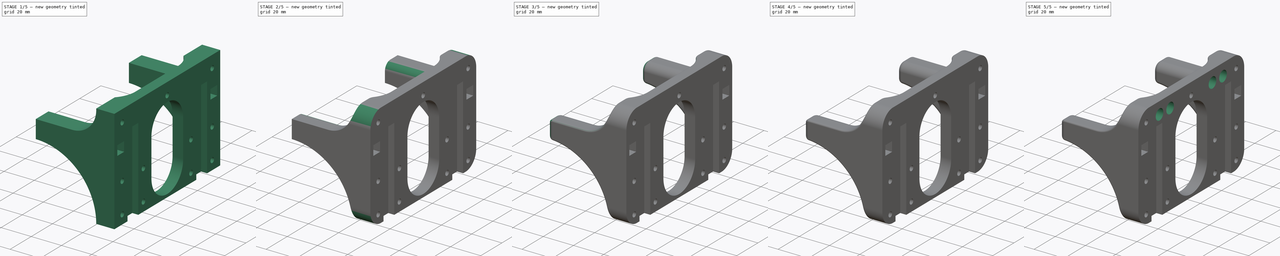
[diagram: build sequence overview — one tinted view per stage of 5, left to right]
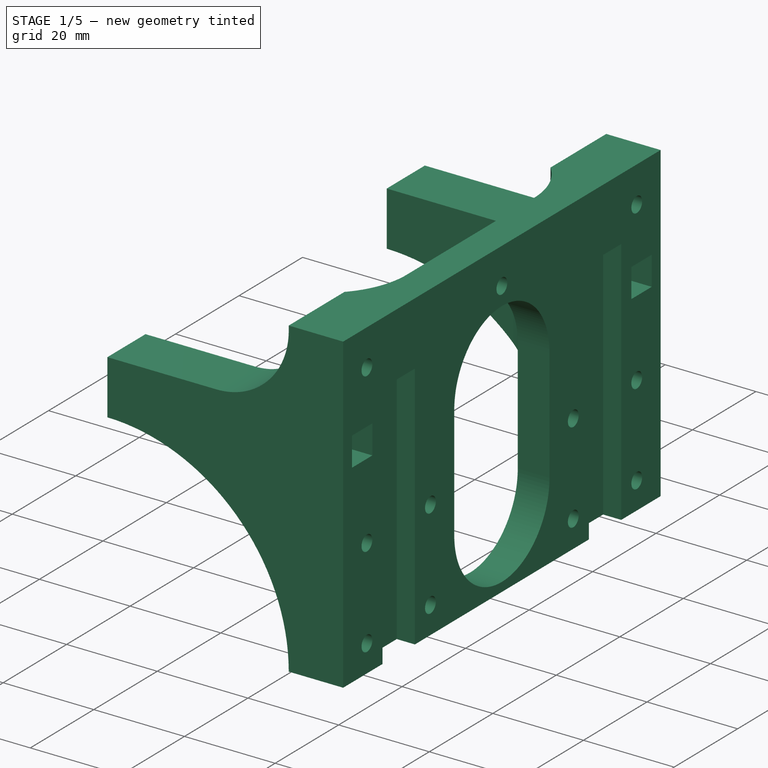
[diagram: stage 1 of 5 — iso view after this stage's code; geometry added in this stage tinted green]
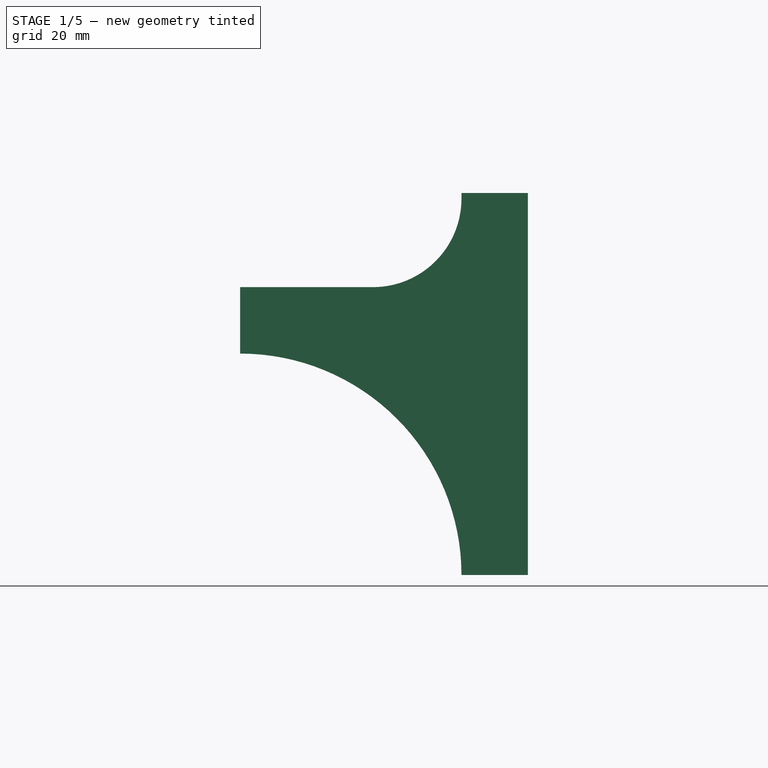
[diagram: stage 1 of 5 — front view after this stage's code; geometry added in this stage tinted green]
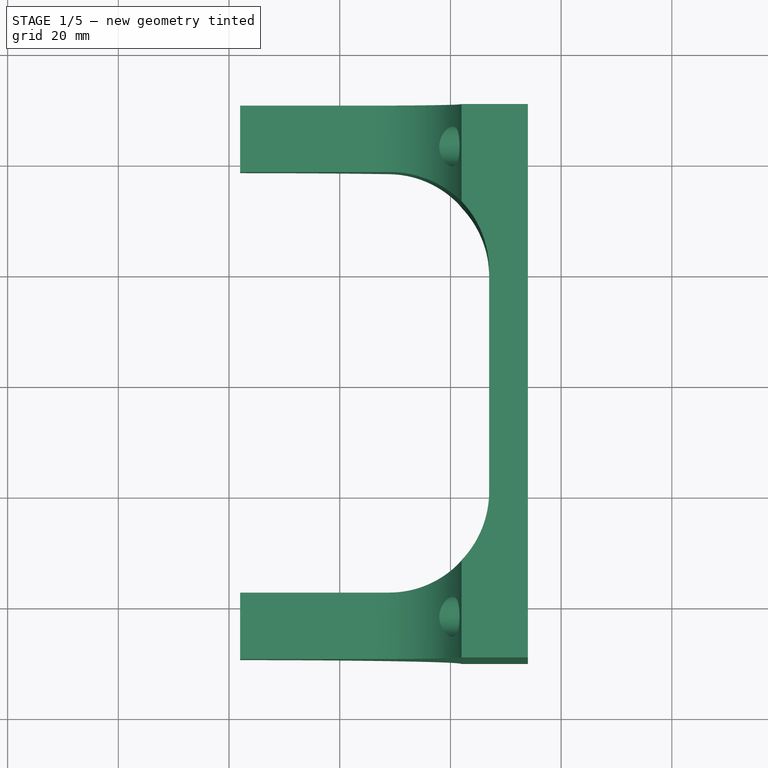
[diagram: stage 1 of 5 — top view after this stage's code; geometry added in this stage tinted green]
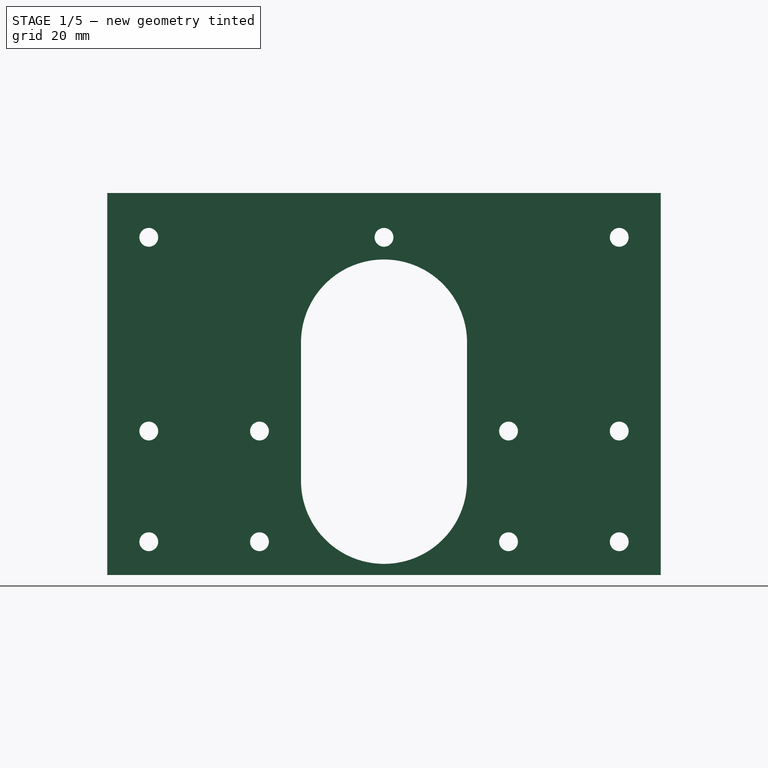
[diagram: stage 1 of 5 — right view after this stage's code; geometry added in this stage tinted green]
FCSTD DOCUMENT  (FreeCAD 0.16R6706 (Git))
Label: BodyBracketB
License: All rights reserved
LicenseURL: http://en.wikipedia.org/wiki/All_rights_reserved
objects: PartDesign::Fillet×12, PartDesign::Chamfer×11, Sketcher::SketchObject×7, PartDesign::Pocket×6, PartDesign::Pad×1
note: 44 computed .brp shape members not serialized (recipe doc carries the construction recipe); baked Part::Feature solids carry a one-line shape summary decoded from their .brp

FEATURE [Sketcher::SketchObject] Sketch001
  Placement = pos=(-86,0,0) rot=(0.57735,-0.57735,-0.57735;2.0944rad)
  sketch-geometry (46):
    g0: LineSegment [constr] StartX=-47.2 StartY=9.2 StartZ=0 EndX=-40.8 EndY=9.2 EndZ=0
    g1: LineSegment [constr] StartX=-40.8 StartY=9.2 StartZ=0 EndX=-40.8 EndY=2.8 EndZ=0
    g2: LineSegment [constr] StartX=-40.8 StartY=2.8 StartZ=0 EndX=-47.2 EndY=2.8 EndZ=0
    g3: LineSegment [constr] StartX=-47.2 StartY=2.8 StartZ=0 EndX=-47.2 EndY=9.2 EndZ=0
    g4: LineSegment [constr] StartX=40.8 StartY=9.2 StartZ=0 EndX=47.2 EndY=9.2 EndZ=0
    g5: LineSegment [constr] StartX=47.2 StartY=9.2 StartZ=0 EndX=47.2 EndY=2.8 EndZ=0
    g6: LineSegment [constr] StartX=47.2 StartY=2.8 StartZ=0 EndX=40.8 EndY=2.8 EndZ=0
    g7: LineSegment [constr] StartX=40.8 StartY=2.8 StartZ=0 EndX=40.8 EndY=9.2 EndZ=0
    g8: GeomPoint [constr] X=-44 Y=6 Z=0
    g9: GeomPoint [constr] X=44 Y=6 Z=0
    g10: Circle [constr] CenterX=-30 CenterY=21 CenterZ=0 NormalX=0 NormalY=0 NormalZ=1 Radius=1.7
    g11: Circle [constr] CenterX=30 CenterY=21 CenterZ=0 NormalX=0 NormalY=0 NormalZ=1 Radius=1.7
    g12: Circle [constr] CenterX=20 CenterY=21 CenterZ=0 NormalX=0 NormalY=0 NormalZ=1 Radius=1.7
    g13: Circle [constr] CenterX=-20 CenterY=21 CenterZ=0 NormalX=0 NormalY=0 NormalZ=1 Radius=1.7
    g14: LineSegment [constr] StartX=-30 StartY=21 StartZ=0 EndX=30 EndY=21 EndZ=0
    g15: LineSegment StartX=-50 StartY=29 StartZ=0 EndX=50 EndY=29 EndZ=0
    g16: LineSegment StartX=50 StartY=29 StartZ=0 EndX=50 EndY=-40 EndZ=0
    g17: LineSegment StartX=50 StartY=-40 StartZ=0 EndX=-50 EndY=-40 EndZ=0
    g18: LineSegment StartX=-50 StartY=-40 StartZ=0 EndX=-50 EndY=29 EndZ=0
    g19: Circle [constr] CenterX=10 CenterY=12 CenterZ=0 NormalX=0 NormalY=0 NormalZ=1 Radius=8
    g20: Circle CenterX=42.5 CenterY=-14 CenterZ=0 NormalX=0 NormalY=0 NormalZ=1 Radius=1.7
    g21: Circle CenterX=42.5 CenterY=-34 CenterZ=0 NormalX=0 NormalY=0 NormalZ=1 Radius=1.7
    g22: Circle CenterX=22.5 CenterY=-14 CenterZ=0 NormalX=0 NormalY=0 NormalZ=1 Radius=1.7
    g23: Circle CenterX=22.5 CenterY=-34 CenterZ=0 NormalX=0 NormalY=0 NormalZ=1 Radius=1.7
    g24: Circle CenterX=-22.5 CenterY=-14 CenterZ=0 NormalX=0 NormalY=0 NormalZ=1 Radius=1.7
    g25: Circle CenterX=-42.5 CenterY=-14 CenterZ=0 NormalX=0 NormalY=0 NormalZ=1 Radius=1.7
    g26: Circle CenterX=-42.5 CenterY=-34 CenterZ=0 NormalX=0 NormalY=0 NormalZ=1 Radius=1.7
    g27: Circle CenterX=-22.5 CenterY=-34 CenterZ=0 NormalX=0 NormalY=0 NormalZ=1 Radius=1.7
    g28: LineSegment [constr] StartX=42.5 StartY=-14 StartZ=0 EndX=-42.5 EndY=-14 EndZ=0
    g29: LineSegment [constr] StartX=-42.5 StartY=-14 StartZ=0 EndX=-42.5 EndY=-34 EndZ=0
    g30: LineSegment [constr] StartX=-42.5 StartY=-34 StartZ=0 EndX=42.5 EndY=-34 EndZ=0
    g31: LineSegment [constr] StartX=42.5 StartY=-34 StartZ=0 EndX=42.5 EndY=-14 EndZ=0
    g32: LineSegment [constr] StartX=-22.5 StartY=-34 StartZ=0 EndX=-22.5 EndY=-14 EndZ=0
    g33: LineSegment [constr] StartX=22.5 StartY=-14 StartZ=0 EndX=22.5 EndY=-34 EndZ=0
    g34: GeomPoint [constr] X=-32.5 Y=-14 Z=0
    g35: GeomPoint [constr] X=32.5 Y=-14 Z=0
    g36: Circle CenterX=-42.5 CenterY=21 CenterZ=0 NormalX=0 NormalY=0 NormalZ=1 Radius=1.7
    g37: Circle CenterX=42.5 CenterY=21 CenterZ=0 NormalX=0 NormalY=0 NormalZ=1 Radius=1.7
    g38: LineSegment [constr] StartX=42.5 StartY=-14 StartZ=0 EndX=42.5 EndY=21 EndZ=0
    g39: LineSegment [constr] StartX=30 StartY=21 StartZ=0 EndX=42.5 EndY=21 EndZ=0
    g40: Circle CenterX=0 CenterY=21 CenterZ=0 NormalX=0 NormalY=0 NormalZ=1 Radius=1.7
    g41: Circle [constr] CenterX=-10 CenterY=12 CenterZ=0 NormalX=0 NormalY=0 NormalZ=1 Radius=8
    g42: ArcOfCircle CenterX=0 CenterY=-23 CenterZ=0 NormalX=0 NormalY=0 NormalZ=1 Radius=15 StartAngle=3.14159 EndAngle=6.28319
    g43: ArcOfCircle CenterX=0 CenterY=2 CenterZ=0 NormalX=0 NormalY=0 NormalZ=1 Radius=15 StartAngle=0 EndAngle=3.14159
    g44: LineSegment StartX=15 StartY=-23 StartZ=0 EndX=15 EndY=2 EndZ=0
    g45: LineSegment StartX=-15 StartY=-23 StartZ=0 EndX=-15 EndY=2 EndZ=0
  constraints (114):
    c: Coincident(g0,g1)
    c: Coincident(g1,g2)
    c: Coincident(g2,g3)
    c: Coincident(g3,g0)
    c: Horizontal(g0)
    c: Horizontal(g2)
    c: Vertical(g1)
    c: Vertical(g3)
    c: Coincident(g4,g5)
    c: Coincident(g5,g6)
    c: Coincident(g6,g7)
    c: Coincident(g7,g4)
    c: Horizontal(g4)
    c: Horizontal(g6)
    c: Vertical(g5)
    c: Vertical(g7)
    c: Symmetric(g4,g0,g-2)
    c: Symmetric(g6,g1,g-2)
    c: Equal(g7,g4)
    c: DistanceY(g5,g5) = 6.4
    c: Symmetric(g2,g0,g8)
    c: Symmetric(g4,g6,g9)
    c: DistanceX(g8,g9) = 88
    c: Radius(g10) = 1.7
    c: Equal(g10,g13)
    c: Equal(g10,g12)
    c: Equal(g10,g11)
    c: Coincident(g14,g11)
    c: PointOnObject(g12,g14)
    c: PointOnObject(g13,g14)
    c: Coincident(g10,g14)
    c: Symmetric(g13,g12,g-2)
    c: DistanceX(g13,g12) = 40
    c: DistanceX(g10,g11) = 60
    c: Symmetric(g10,g11,g-2)
    c: DistanceY(g8,g10) = 15
    c: Coincident(g15,g16)
    c: Coincident(g16,g17)
    c: Coincident(g17,g18)
    c: Coincident(g18,g15)
    c: Horizontal(g15)
    c: Horizontal(g17)
    c: Vertical(g16)
    c: Vertical(g18)
    c: DistanceY(g-1,g8) = 6
    c: Symmetric(g17,g16,g-2)
    c: DistanceX(g17,g16) = 100
    c: DistanceY(g16,g-1) = 40
    c: DistanceY(g-1,g15) = 29
    c: DistanceY(g-1,g19) = 12
    c: Radius(g19) = 8
    c: Coincident(g28,g29)
    c: Coincident(g29,g30)
    c: Coincident(g30,g31)
    c: Coincident(g31,g28)
    c: Horizontal(g28)
    c: Vertical(g29)
    c: Vertical(g31)
    c: Coincident(g28,g20)
    c: Coincident(g29,g26)
    c: Coincident(g28,g25)
    c: Coincident(g21,g30)
    c: Coincident(g32,g27)
    c: Coincident(g32,g24)
    c: Vertical(g32)
    c: Coincident(g33,g22)
    c: Coincident(g33,g23)
    c: Vertical(g33)
    c: PointOnObject(g23,g30)
    c: PointOnObject(g22,g28)
    c: PointOnObject(g24,g28)
    c: PointOnObject(g27,g30)
    c: Radius(g26) = 1.7
    c: Equal(g26,g25)
    c: Equal(g26,g24)
    c: Equal(g26,g27)
    c: Equal(g26,g22)
    c: Equal(g26,g23)
    c: Equal(g26,g20)
    c: Equal(g26,g21)
    c: Symmetric(g27,g23,g-2)
    c: Symmetric(g26,g21,g-2)
    c: DistanceX(g23,g21) = 20
    c: DistanceY(g21,g20) = 20
    c: Symmetric(g24,g25,g34)
    c: Symmetric(g20,g22,g35)
    c: DistanceX(g34,g35) = 65
    c: DistanceY(g24,g-1) = 14
    c: Vertical(g38)
    c: Coincident(g20,g38)
    c: Coincident(g37,g38)
    c: Symmetric(g36,g37,g-2)
    c: Radius(g37) = 1.7
    c: Equal(g37,g36)
    c: Coincident(g39,g11)
    c: Coincident(g39,g37)
    c: Horizontal(g39)
    c: DistanceY(g20,g37) = 35
    c: Equal(g40,g12)
    c: Equal(g41,g19)
    c: Symmetric(g41,g19,g-2)
    c: DistanceX(g41,g19) = 20
    c: PointOnObject(g40,g-2)
    c: PointOnObject(g40,g14)
    c: Tangent(g42,g45) = 1.5708
    c: Tangent(g42,g44) = -1.5708
    c: Tangent(g44,g43) = -1.5708
    c: Tangent(g45,g43) = 1.5708
    c: Vertical(g44)
    c: Equal(g42,g43)
    c: PointOnObject(g42,g-2)
    c: DistanceX(g42,g42) = 30
    c: DistanceY(g42,g43) = 25
    c: DistanceY(g-1,g43) = 2
FEATURE [PartDesign::Pad] Pad
  Length = 52
  Length2 = 100
  Placement = pos=(-86,0,0) rot=(0.57735,-0.57735,-0.57735;2.0944rad)
  Sketch = -> Sketch001
  Type = 0
FEATURE [Sketcher::SketchObject] Sketch004
  Placement = pos=(-86,0,0) rot=(-0.57735,0.57735,-0.57735;2.0944rad)
  Support = -> Pad [Face20]
  sketch-geometry (12):
    g0: LineSegment StartX=-37.6 StartY=85 StartZ=0 EndX=-27.4 EndY=85 EndZ=0
    g1: LineSegment StartX=-27.4 StartY=85 StartZ=0 EndX=-27.4 EndY=-15 EndZ=0
    g2: LineSegment StartX=-27.4 StartY=-15 StartZ=0 EndX=-37.6 EndY=-15 EndZ=0
    g3: LineSegment StartX=-37.6 StartY=-15 StartZ=0 EndX=-37.6 EndY=85 EndZ=0
    g4: LineSegment StartX=27.4 StartY=85 StartZ=0 EndX=37.6 EndY=85 EndZ=0
    g5: LineSegment StartX=37.6 StartY=85 StartZ=0 EndX=37.6 EndY=-15 EndZ=0
    g6: LineSegment StartX=37.6 StartY=-15 StartZ=0 EndX=27.4 EndY=-15 EndZ=0
    g7: LineSegment StartX=27.4 StartY=-15 StartZ=0 EndX=27.4 EndY=85 EndZ=0
    g8: LineSegment [constr] StartX=-27.4 StartY=-15 StartZ=0 EndX=27.4 EndY=-15 EndZ=0
    g9: LineSegment [constr] StartX=-27.4 StartY=85 StartZ=0 EndX=27.4 EndY=85 EndZ=0
    g10: GeomPoint [constr] X=-32.5 Y=85 Z=0
    g11: GeomPoint [constr] X=32.5 Y=85 Z=0
  constraints (30):
    c: Coincident(g0,g1)
    c: Coincident(g1,g2)
    c: Coincident(g2,g3)
    c: Coincident(g3,g0)
    c: Horizontal(g0)
    c: Horizontal(g2)
    c: Vertical(g1)
    c: Vertical(g3)
    c: Coincident(g4,g5)
    c: Coincident(g5,g6)
    c: Coincident(g6,g7)
    c: Coincident(g7,g4)
    c: Horizontal(g4)
    c: Horizontal(g6)
    c: Vertical(g5)
    c: Vertical(g7)
    c: DistanceX(g0,g0) = 10.2
    c: DistanceX(g4,g4) = 10.2
    c: Coincident(g8,g1)
    c: Horizontal(g8)
    c: Coincident(g6,g8)
    c: Coincident(g9,g0)
    c: Horizontal(g9)
    c: Coincident(g9,g4)
    c: DistanceY(g1,g-1) = 15
    c: DistanceY(g2,g0) = 100
    c: Symmetric(g4,g4,g11)
    c: Symmetric(g0,g0,g10)
    c: DistanceX(g10,g11) = 65
    c: Symmetric(g4,g0,g-2)
FEATURE [PartDesign::Pocket] Pocket
  Length = 4
  Placement = pos=(-86,0,0) rot=(0.57735,-0.57735,-0.57735;2.0944rad)
  Sketch = -> Sketch004
  Type = 0
FEATURE [Sketcher::SketchObject] Sketch
  Placement = pos=(-86,0,0) rot=(-0.57735,0.57735,-0.57735;2.0944rad)
  Support = -> Pocket [Face4]
  sketch-geometry (10):
    g0: LineSegment StartX=-47.2 StartY=-2.8 StartZ=0 EndX=-40.8 EndY=-2.8 EndZ=0
    g1: LineSegment StartX=-40.8 StartY=-2.8 StartZ=0 EndX=-40.8 EndY=-9.2 EndZ=0
    g2: LineSegment StartX=-40.8 StartY=-9.2 StartZ=0 EndX=-47.2 EndY=-9.2 EndZ=0
    g3: LineSegment StartX=-47.2 StartY=-9.2 StartZ=0 EndX=-47.2 EndY=-2.8 EndZ=0
    g4: LineSegment StartX=40.8 StartY=-2.8 StartZ=0 EndX=47.2 EndY=-2.8 EndZ=0
    g5: LineSegment StartX=47.2 StartY=-2.8 StartZ=0 EndX=47.2 EndY=-9.2 EndZ=0
    g6: LineSegment StartX=47.2 StartY=-9.2 StartZ=0 EndX=40.8 EndY=-9.2 EndZ=0
    g7: LineSegment StartX=40.8 StartY=-9.2 StartZ=0 EndX=40.8 EndY=-2.8 EndZ=0
    g8: GeomPoint [constr] X=-44 Y=-6 Z=0
    g9: GeomPoint [constr] X=44 Y=-6 Z=0
  constraints (25):
    c: Coincident(g0,g1)
    c: Coincident(g1,g2)
    c: Coincident(g2,g3)
    c: Coincident(g3,g0)
    c: Horizontal(g0)
    c: Horizontal(g2)
    c: Vertical(g1)
    c: Vertical(g3)
    c: Coincident(g4,g5)
    c: Coincident(g5,g6)
    c: Coincident(g6,g7)
    c: Coincident(g7,g4)
    c: Horizontal(g4)
    c: Horizontal(g6)
    c: Vertical(g5)
    c: Vertical(g7)
    c: Equal(g2,g1)
    c: Equal(g7,g6)
    c: Symmetric(g2,g0,g8)
    c: Symmetric(g4,g6,g9)
    c: Symmetric(g8,g9,g-2)
    c: DistanceX(g8,g9) = 88
    c: DistanceY(g8,g-1) = 6
    c: DistanceY(g3,g3) = 6.4
    c: Equal(g5,g1)
FEATURE [PartDesign::Pocket] Pocket001
  Length = 50
  Placement = pos=(-86,0,0) rot=(0.57735,-0.57735,-0.57735;2.0944rad)
  Sketch = -> Sketch
  Type = 0
FEATURE [Sketcher::SketchObject] Sketch005
  Placement = pos=(-86,50,0) rot=(0.57735,-0.57735,-0.57735;4.18879rad)
  Support = -> Pocket001 [Face2]
  sketch-geometry (13):
    g0: LineSegment StartX=0 StartY=92 StartZ=0 EndX=60 EndY=92 EndZ=0
    g1: LineSegment StartX=60 StartY=92 StartZ=0 EndX=60 EndY=12 EndZ=0
    g2: LineSegment StartX=60 StartY=12 StartZ=0 EndX=40 EndY=12 EndZ=0
    g3: LineSegment StartX=0 StartY=52 StartZ=0 EndX=0 EndY=92 EndZ=0
    g4: LineSegment StartX=-50 StartY=92 StartZ=0 EndX=-12 EndY=92 EndZ=0
    g5: LineSegment StartX=-12 StartY=92 StartZ=0 EndX=-12 EndY=28 EndZ=0
    g6: LineSegment StartX=-28 StartY=12 StartZ=0 EndX=-50 EndY=12 EndZ=0
    g7: LineSegment StartX=-50 StartY=12 StartZ=0 EndX=-50 EndY=92 EndZ=0
    g8: LineSegment [constr] StartX=-12 StartY=92 StartZ=0 EndX=0 EndY=92 EndZ=0
    g9: ArcOfCircle CenterX=40 CenterY=52 CenterZ=0 NormalX=0 NormalY=0 NormalZ=1 Radius=40 StartAngle=3.14159 EndAngle=4.71239
    g10: ArcOfCircle CenterX=-28 CenterY=28 CenterZ=0 NormalX=0 NormalY=0 NormalZ=1 Radius=16 StartAngle=4.71239 EndAngle=6.28319
    g11: LineSegment [constr] StartX=-28 StartY=12 StartZ=0 EndX=40 EndY=12 EndZ=0
    g12: GeomPoint [constr] X=-6 Y=92 Z=0
  constraints (34):
    c: Coincident(g0,g1)
    c: Coincident(g1,g2)
    c: Coincident(g3,g0)
    c: Horizontal(g0)
    c: Horizontal(g2)
    c: Vertical(g1)
    c: Vertical(g3)
    c: Coincident(g4,g5)
    c: Coincident(g6,g7)
    c: Coincident(g7,g4)
    c: Horizontal(g4)
    c: Horizontal(g6)
    c: Vertical(g5)
    c: Vertical(g7)
    c: Coincident(g8,g4)
    c: Coincident(g8,g0)
    c: Horizontal(g8)
    c: Tangent(g3,g9) = 1.5708
    c: Tangent(g2,g9) = 1.5708
    c: Tangent(g5,g10) = 1.5708
    c: Tangent(g6,g10) = 1.5708
    c: Coincident(g11,g6)
    c: Coincident(g11,g2)
    c: Horizontal(g11)
    c: DistanceY(g-1,g2) = 12
    c: DistanceX(g4,g0) = 12
    c: Symmetric(g0,g4,g12)
    c: DistanceX(g12,g-1) = 6
    c: DistanceX(g6,g-1) = 28
    c: DistanceY(g6,g4) = 80
    c: DistanceX(g-1,g2) = 40
    c: DistanceX(g0,g0) = 60
    c: DistanceX(g6,g-1) = 50
    c: DistanceY(g-1,g3) = 52
FEATURE [PartDesign::Pocket] Pocket002
  Length = 5
  Placement = pos=(-86,0,0) rot=(0.57735,-0.57735,-0.57735;2.0944rad)
  Sketch = -> Sketch005
  Type = 1
FEATURE [Sketcher::SketchObject] Sketch006
  Placement = pos=(-86,0,-40) rot=(0.707107,-0.707107,0;3.14159rad)
  Support = -> Pocket002 [Face6]
  sketch-geometry (6):
    g0: LineSegment StartX=-38 StartY=57 StartZ=0 EndX=38 EndY=57 EndZ=0
    g1: LineSegment StartX=38 StartY=57 StartZ=0 EndX=38 EndY=25 EndZ=0
    g2: LineSegment StartX=20 StartY=7 StartZ=0 EndX=-20 EndY=7 EndZ=0
    g3: LineSegment StartX=-38 StartY=25 StartZ=0 EndX=-38 EndY=57 EndZ=0
    g4: ArcOfCircle CenterX=-20 CenterY=25 CenterZ=0 NormalX=0 NormalY=0 NormalZ=1 Radius=18 StartAngle=3.14159 EndAngle=4.71239
    g5: ArcOfCircle CenterX=20 CenterY=25 CenterZ=0 NormalX=0 NormalY=0 NormalZ=1 Radius=18 StartAngle=4.71239 EndAngle=6.28319
  constraints (16):
    c: Coincident(g0,g1)
    c: Coincident(g3,g0)
    c: Horizontal(g0)
    c: Horizontal(g2)
    c: Vertical(g1)
    c: Vertical(g3)
    c: Symmetric(g0,g0,g-2)
    c: Tangent(g3,g4) = 1.5708
    c: Tangent(g2,g4) = 1.5708
    c: Tangent(g1,g5) = 1.5708
    c: Tangent(g2,g5) = 1.5708
    c: Symmetric(g2,g2,g-2)
    c: DistanceX(g2,g2) = 40
    c: DistanceY(g-1,g2) = 7
    c: DistanceX(g3,g1) = 76
    c: DistanceY(g2,g0) = 50
FEATURE [PartDesign::Pocket] Pocket003
  Length = 1000
  Placement = pos=(-86,0,0) rot=(0.57735,-0.57735,-0.57735;2.0944rad)
  Sketch = -> Sketch006
  Type = 1
FEATURE [Sketcher::SketchObject] Sketch007
  Placement = pos=(-93,0,0) rot=(0.57735,-0.57735,-0.57735;2.0944rad)
  Support = -> Pocket003 [Face6]
  sketch-geometry (43):
    g0: LineSegment [constr] StartX=-47.2 StartY=9.2 StartZ=0 EndX=-40.8 EndY=9.2 EndZ=0
    g1: LineSegment [constr] StartX=-40.8 StartY=9.2 StartZ=0 EndX=-40.8 EndY=2.8 EndZ=0
    g2: LineSegment [constr] StartX=-40.8 StartY=2.8 StartZ=0 EndX=-47.2 EndY=2.8 EndZ=0
    g3: LineSegment [constr] StartX=-47.2 StartY=2.8 StartZ=0 EndX=-47.2 EndY=9.2 EndZ=0
    g4: LineSegment [constr] StartX=40.8 StartY=9.2 StartZ=0 EndX=47.2 EndY=9.2 EndZ=0
    g5: LineSegment [constr] StartX=47.2 StartY=9.2 StartZ=0 EndX=47.2 EndY=2.8 EndZ=0
    g6: LineSegment [constr] StartX=47.2 StartY=2.8 StartZ=0 EndX=40.8 EndY=2.8 EndZ=0
    g7: LineSegment [constr] StartX=40.8 StartY=2.8 StartZ=0 EndX=40.8 EndY=9.2 EndZ=0
    g8: GeomPoint [constr] X=-44 Y=6 Z=0
    g9: GeomPoint [constr] X=44 Y=6 Z=0
    g10: Circle [constr] CenterX=-30 CenterY=21 CenterZ=0 NormalX=0 NormalY=0 NormalZ=1 Radius=1.7
    g11: Circle [constr] CenterX=30 CenterY=21 CenterZ=0 NormalX=0 NormalY=0 NormalZ=1 Radius=1.7
    g12: Circle [constr] CenterX=20 CenterY=21 CenterZ=0 NormalX=0 NormalY=0 NormalZ=1 Radius=1.7
    g13: Circle [constr] CenterX=-20 CenterY=21 CenterZ=0 NormalX=0 NormalY=0 NormalZ=1 Radius=1.7
    g14: LineSegment [constr] StartX=-30 StartY=21 StartZ=0 EndX=30 EndY=21 EndZ=0
    g15: LineSegment [constr] StartX=-50 StartY=29 StartZ=0 EndX=50 EndY=29 EndZ=0
    g16: LineSegment [constr] StartX=50 StartY=29 StartZ=0 EndX=50 EndY=-40 EndZ=0
    g17: LineSegment [constr] StartX=50 StartY=-40 StartZ=0 EndX=-50 EndY=-40 EndZ=0
    g18: LineSegment [constr] StartX=-50 StartY=-40 StartZ=0 EndX=-50 EndY=29 EndZ=0
    g19: Circle [constr] CenterX=0 CenterY=-24 CenterZ=0 NormalX=0 NormalY=0 NormalZ=1 Radius=12
    g20: Circle [constr] CenterX=10 CenterY=12 CenterZ=0 NormalX=0 NormalY=0 NormalZ=1 Radius=8
    g21: Circle CenterX=42.5 CenterY=-14 CenterZ=0 NormalX=0 NormalY=0 NormalZ=1 Radius=3.6
    g22: Circle CenterX=42.5 CenterY=-34 CenterZ=0 NormalX=0 NormalY=0 NormalZ=1 Radius=3.6
    g23: Circle CenterX=22.5 CenterY=-14 CenterZ=0 NormalX=0 NormalY=0 NormalZ=1 Radius=3.6
    g24: Circle CenterX=22.5 CenterY=-34 CenterZ=0 NormalX=0 NormalY=0 NormalZ=1 Radius=3.6
    g25: Circle CenterX=-22.5 CenterY=-14 CenterZ=0 NormalX=0 NormalY=0 NormalZ=1 Radius=3.6
    g26: Circle CenterX=-42.5 CenterY=-14 CenterZ=0 NormalX=0 NormalY=0 NormalZ=1 Radius=3.6
    g27: Circle CenterX=-42.5 CenterY=-34 CenterZ=0 NormalX=0 NormalY=0 NormalZ=1 Radius=3.6
    g28: Circle CenterX=-22.5 CenterY=-34 CenterZ=0 NormalX=0 NormalY=0 NormalZ=1 Radius=3.6
    g29: LineSegment [constr] StartX=42.5 StartY=-14 StartZ=0 EndX=-42.5 EndY=-14 EndZ=0
    g30: LineSegment [constr] StartX=-42.5 StartY=-14 StartZ=0 EndX=-42.5 EndY=-34 EndZ=0
    g31: LineSegment [constr] StartX=-42.5 StartY=-34 StartZ=0 EndX=42.5 EndY=-34 EndZ=0
    g32: LineSegment [constr] StartX=42.5 StartY=-34 StartZ=0 EndX=42.5 EndY=-14 EndZ=0
    g33: LineSegment [constr] StartX=-22.5 StartY=-34 StartZ=0 EndX=-22.5 EndY=-14 EndZ=0
    g34: LineSegment [constr] StartX=22.5 StartY=-14 StartZ=0 EndX=22.5 EndY=-34 EndZ=0
    g35: GeomPoint [constr] X=-32.5 Y=-14 Z=0
    g36: GeomPoint [constr] X=32.5 Y=-14 Z=0
    g37: Circle CenterX=-42.5 CenterY=21 CenterZ=0 NormalX=0 NormalY=0 NormalZ=1 Radius=3.6
    g38: Circle CenterX=42.5 CenterY=21 CenterZ=0 NormalX=0 NormalY=0 NormalZ=1 Radius=3.6
    g39: LineSegment [constr] StartX=42.5 StartY=-14 StartZ=0 EndX=42.5 EndY=21 EndZ=0
    g40: LineSegment [constr] StartX=30 StartY=21 StartZ=0 EndX=42.5 EndY=21 EndZ=0
    g41: Circle CenterX=0 CenterY=21 CenterZ=0 NormalX=0 NormalY=0 NormalZ=1 Radius=3.6
    g42: Circle [constr] CenterX=-10 CenterY=12 CenterZ=0 NormalX=0 NormalY=0 NormalZ=1 Radius=8
  constraints (107):
    c: Coincident(g0,g1)
    c: Coincident(g1,g2)
    c: Coincident(g2,g3)
    c: Coincident(g3,g0)
    c: Horizontal(g0)
    c: Horizontal(g2)
    c: Vertical(g1)
    c: Vertical(g3)
    c: Coincident(g4,g5)
    c: Coincident(g5,g6)
    c: Coincident(g6,g7)
    c: Coincident(g7,g4)
    c: Horizontal(g4)
    c: Horizontal(g6)
    c: Vertical(g5)
    c: Vertical(g7)
    c: Symmetric(g4,g0,g-2)
    c: Symmetric(g6,g1,g-2)
    c: Equal(g7,g4)
    c: DistanceY(g5,g5) = 6.4
    c: Symmetric(g2,g0,g8)
    c: Symmetric(g4,g6,g9)
    c: DistanceX(g8,g9) = 88
    c: Radius(g10) = 1.7
    c: Equal(g10,g13)
    c: Equal(g10,g12)
    c: Equal(g10,g11)
    c: Coincident(g14,g11)
    c: PointOnObject(g12,g14)
    c: PointOnObject(g13,g14)
    c: Coincident(g10,g14)
    c: Symmetric(g13,g12,g-2)
    c: DistanceX(g13,g12) = 40
    c: DistanceX(g10,g11) = 60
    c: Symmetric(g10,g11,g-2)
    c: DistanceY(g8,g10) = 15
    c: Coincident(g15,g16)
    c: Coincident(g16,g17)
    c: Coincident(g17,g18)
    c: Coincident(g18,g15)
    c: Horizontal(g15)
    c: Horizontal(g17)
    c: Vertical(g16)
    c: Vertical(g18)
    c: DistanceY(g-1,g8) = 6
    c: Symmetric(g17,g16,g-2)
    c: DistanceX(g17,g16) = 100
    c: DistanceY(g16,g-1) = 40
    c: DistanceY(g-1,g15) = 29
    c: PointOnObject(g19,g-2)
    c: DistanceY(g-1,g20) = 12
    c: Radius(g20) = 8
    c: DistanceY(g19,g-1) = 24
    c: Radius(g19) = 12
    c: Coincident(g29,g30)
    c: Coincident(g30,g31)
    c: Coincident(g31,g32)
    c: Coincident(g32,g29)
    c: Horizontal(g29)
    c: Vertical(g30)
    c: Vertical(g32)
    c: Coincident(g29,g21)
    c: Coincident(g30,g27)
    c: Coincident(g29,g26)
    c: Coincident(g22,g31)
    c: Coincident(g33,g28)
    c: Coincident(g33,g25)
    c: Vertical(g33)
    c: Coincident(g34,g23)
    c: Coincident(g34,g24)
    c: Vertical(g34)
    c: PointOnObject(g24,g31)
    c: PointOnObject(g23,g29)
    c: PointOnObject(g25,g29)
    c: PointOnObject(g28,g31)
    c: Radius(g27) = 3.6
    c: Equal(g27,g26)
    c: Equal(g27,g25)
    c: Equal(g27,g28)
    c: Equal(g27,g23)
    c: Equal(g27,g24)
    c: Equal(g27,g21)
    c: Equal(g27,g22)
    c: Symmetric(g28,g24,g-2)
    c: Symmetric(g27,g22,g-2)
    c: DistanceX(g24,g22) = 20
    c: DistanceY(g22,g21) = 20
    c: Symmetric(g25,g26,g35)
    c: Symmetric(g21,g23,g36)
    c: DistanceX(g35,g36) = 65
    c: DistanceY(g25,g-1) = 14
    c: Vertical(g39)
    c: Coincident(g21,g39)
    c: Coincident(g38,g39)
    c: Symmetric(g37,g38,g-2)
    c: Equal(g38,g37)
    c: Coincident(g40,g11)
    c: Coincident(g40,g38)
    c: Horizontal(g40)
    c: DistanceY(g21,g38) = 35
    c: Equal(g42,g20)
    c: Symmetric(g42,g20,g-2)
    c: DistanceX(g42,g20) = 20
    c: PointOnObject(g41,g-2)
    c: PointOnObject(g41,g14)
    c: Equal(g38,g21)
    c: Equal(g37,g41)
FEATURE [PartDesign::Pocket] Pocket004
  Length = 55
  Placement = pos=(-86,0,0) rot=(0.57735,-0.57735,-0.57735;2.0944rad)
  Reversed = true
  Sketch = -> Sketch007
  Type = 1
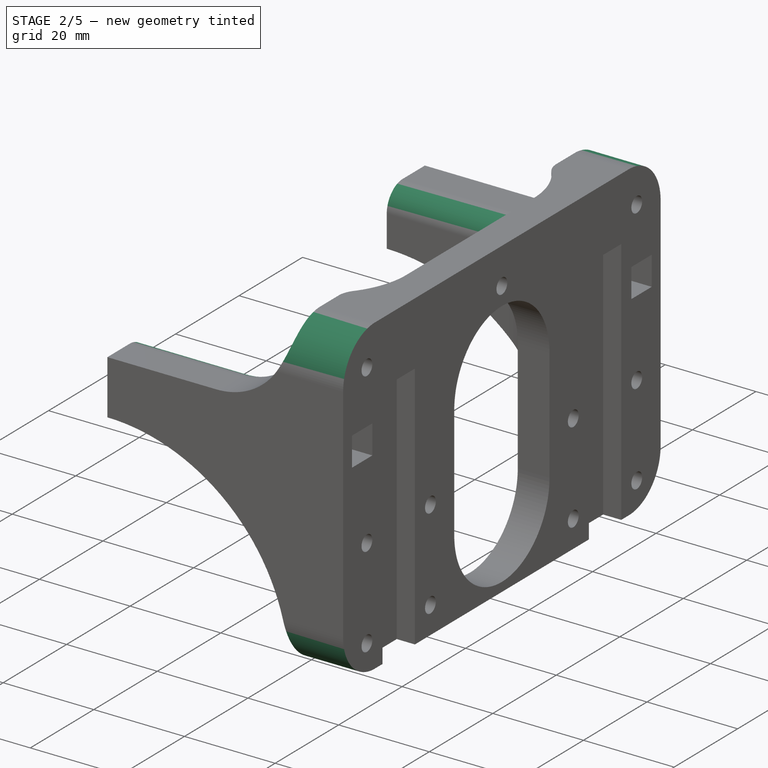
[diagram: stage 2 of 5 — iso view after this stage's code; geometry added in this stage tinted green]
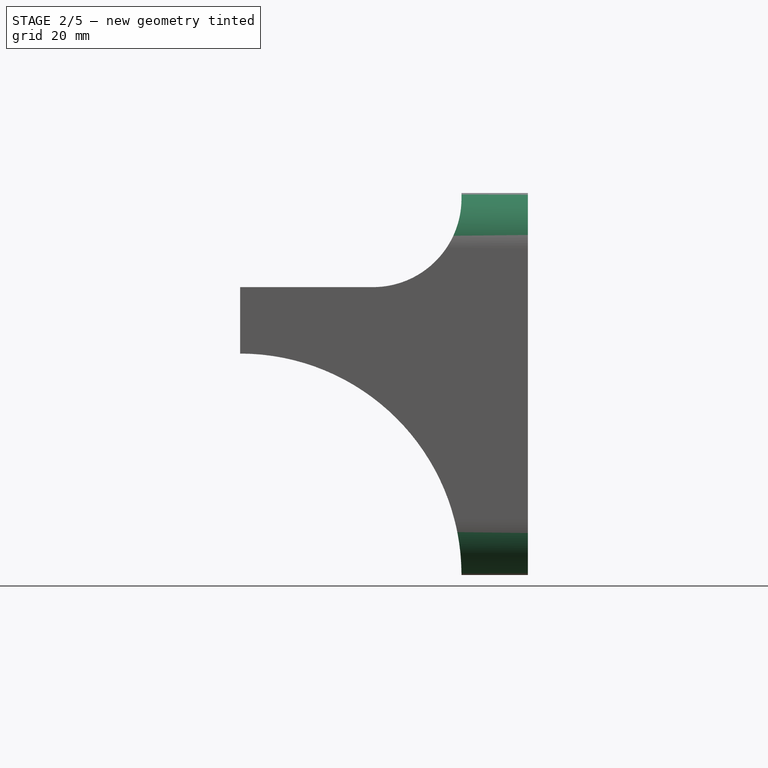
[diagram: stage 2 of 5 — front view after this stage's code; geometry added in this stage tinted green]
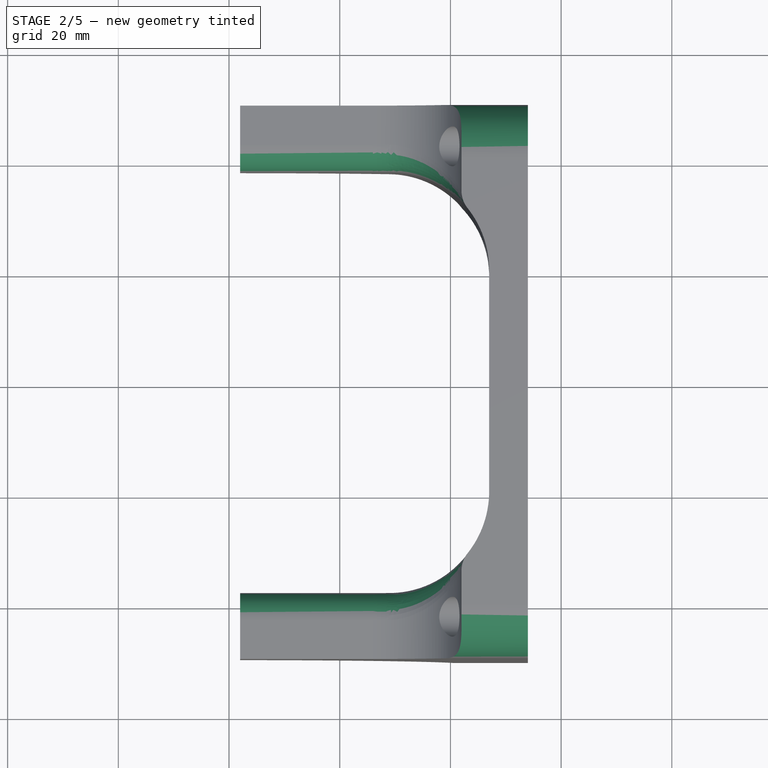
[diagram: stage 2 of 5 — top view after this stage's code; geometry added in this stage tinted green]
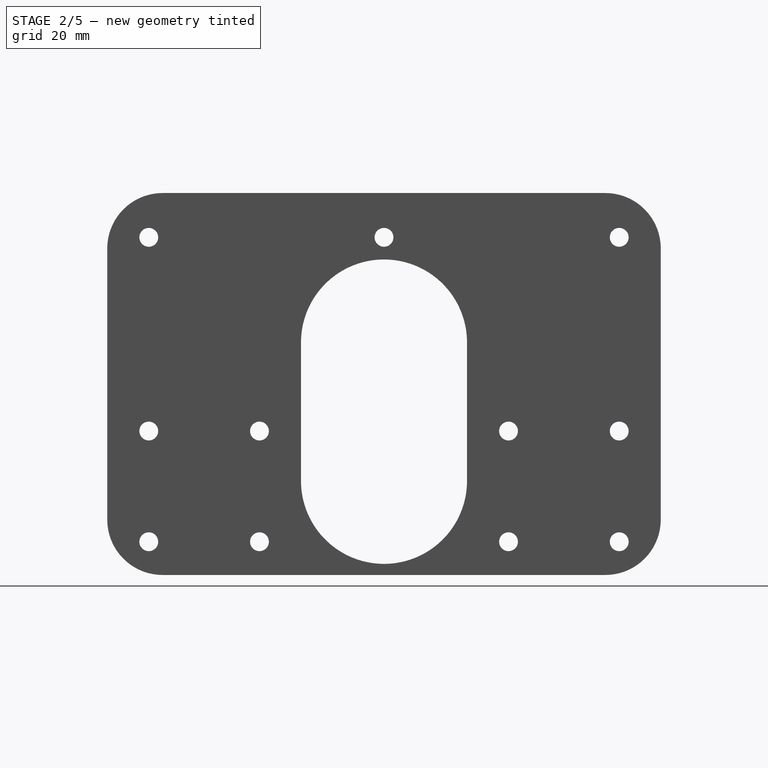
[diagram: stage 2 of 5 — right view after this stage's code; geometry added in this stage tinted green]
FEATURE [PartDesign::Fillet] Fillet
  Base = -> Pocket004 [Edge2]
  Placement = pos=(-86,0,0) rot=(0.57735,-0.57735,-0.57735;2.0944rad)
  Radius = 10
FEATURE [PartDesign::Fillet] Fillet001
  Base = -> Fillet [Edge92]
  Placement = pos=(-86,0,0) rot=(0.57735,-0.57735,-0.57735;2.0944rad)
  Radius = 10
FEATURE [PartDesign::Fillet] Fillet002
  Base = -> Fillet001 [Edge59]
  Placement = pos=(-86,0,0) rot=(0.57735,-0.57735,-0.57735;2.0944rad)
  Radius = 10
FEATURE [PartDesign::Fillet] Fillet003
  Base = -> Fillet002 [Edge40]
  Placement = pos=(-86,0,0) rot=(0.57735,-0.57735,-0.57735;2.0944rad)
  Radius = 10
FEATURE [PartDesign::Fillet] Fillet004
  Base = -> Fillet003 [Edge170]
  Placement = pos=(-86,0,0) rot=(0.57735,-0.57735,-0.57735;2.0944rad)
  Radius = 5
FEATURE [PartDesign::Fillet] Fillet005
  Base = -> Fillet004 [Edge219]
  Placement = pos=(-86,0,0) rot=(0.57735,-0.57735,-0.57735;2.0944rad)
  Radius = 5
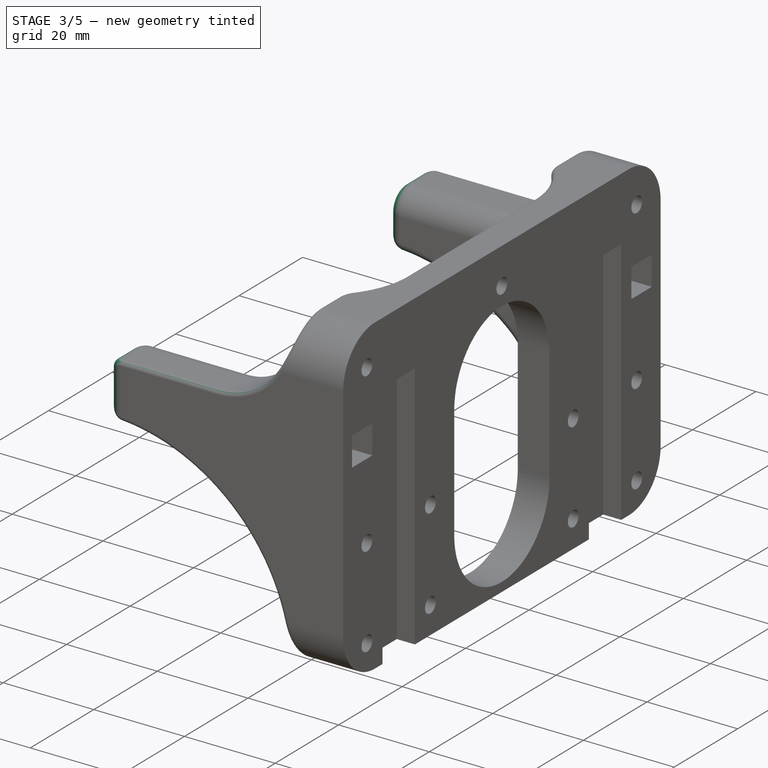
[diagram: stage 3 of 5 — iso view after this stage's code; geometry added in this stage tinted green]
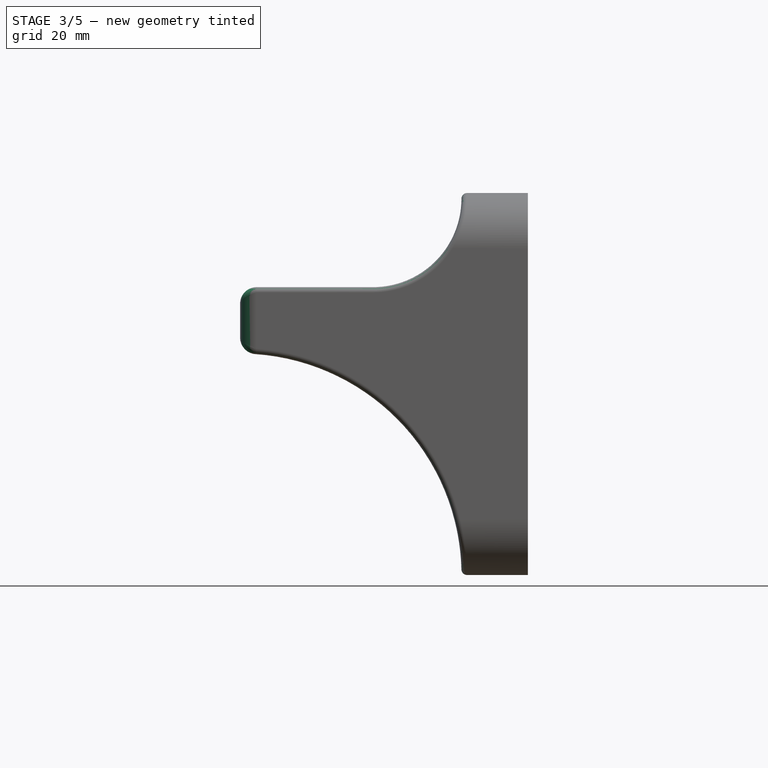
[diagram: stage 3 of 5 — front view after this stage's code; geometry added in this stage tinted green]
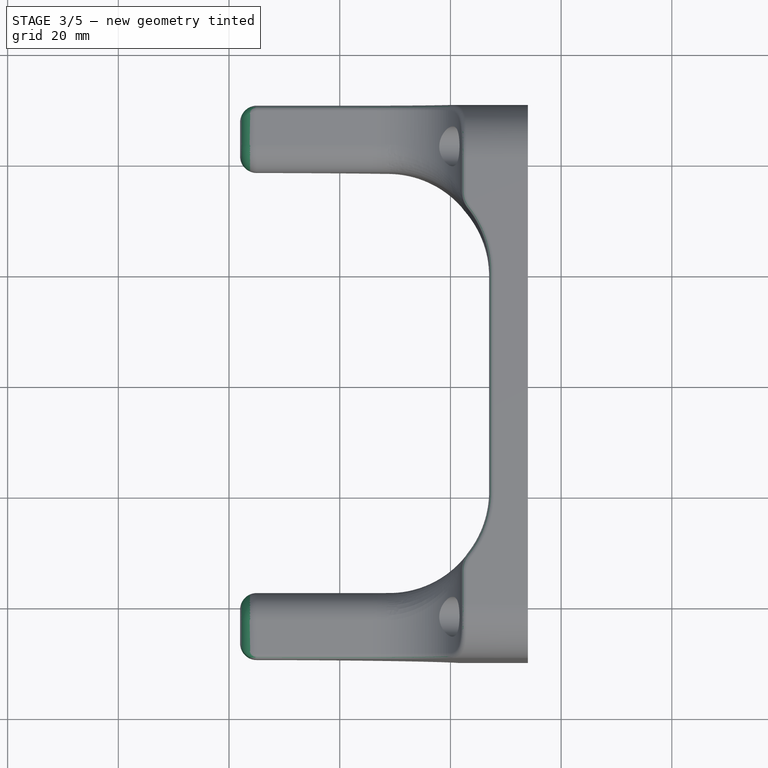
[diagram: stage 3 of 5 — top view after this stage's code; geometry added in this stage tinted green]
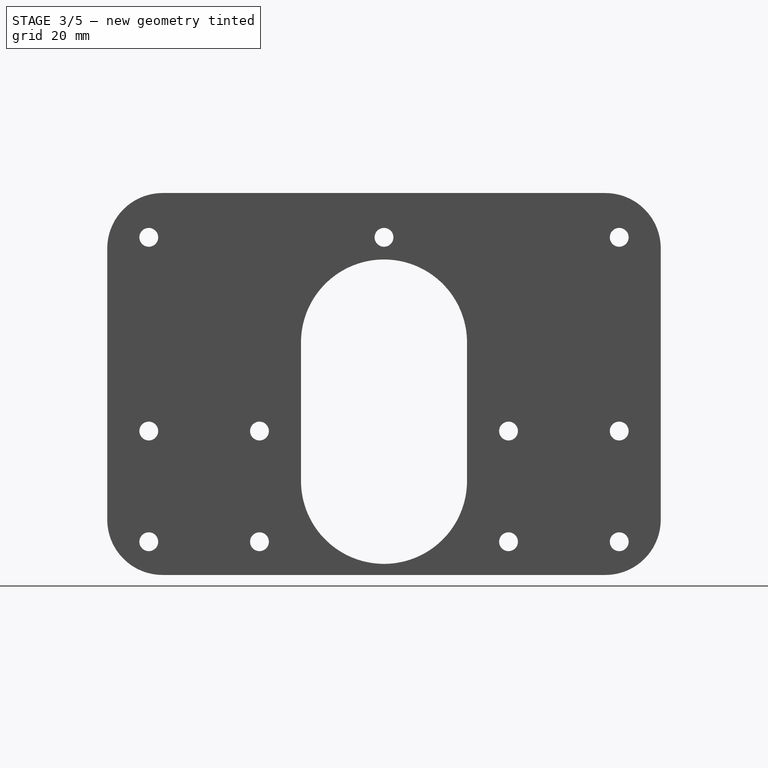
[diagram: stage 3 of 5 — right view after this stage's code; geometry added in this stage tinted green]
FEATURE [PartDesign::Fillet] Fillet006
  Base = -> Fillet005 [Edge144]
  Placement = pos=(-86,0,0) rot=(0.57735,-0.57735,-0.57735;2.0944rad)
  Radius = 2
FEATURE [PartDesign::Fillet] Fillet007
  Base = -> Fillet006 [Edge171]
  Placement = pos=(-86,0,0) rot=(0.57735,-0.57735,-0.57735;2.0944rad)
  Radius = 2
FEATURE [PartDesign::Fillet] Fillet008
  Base = -> Fillet007 [Edge53]
  Placement = pos=(-86,0,0) rot=(0.57735,-0.57735,-0.57735;2.0944rad)
  Radius = 1
FEATURE [PartDesign::Fillet] Fillet009
  Base = -> Fillet008 [Edge120]
  Placement = pos=(-86,0,0) rot=(0.57735,-0.57735,-0.57735;2.0944rad)
  Radius = 0.99
FEATURE [PartDesign::Fillet] Fillet010
  Base = -> Fillet009 [Edge243]
  Placement = pos=(-86,0,0) rot=(0.57735,-0.57735,-0.57735;2.0944rad)
  Radius = 3
FEATURE [PartDesign::Fillet] Fillet011
  Base = -> Fillet010 [Edge243]
  Placement = pos=(-86,0,0) rot=(0.57735,-0.57735,-0.57735;2.0944rad)
  Radius = 3
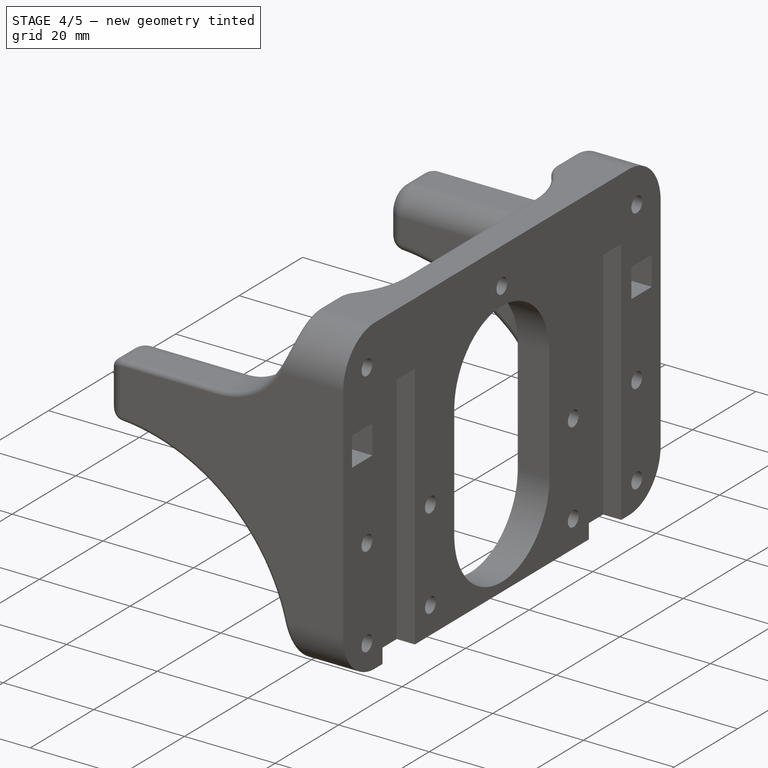
[diagram: stage 4 of 5 — iso view after this stage's code; geometry added in this stage tinted green]
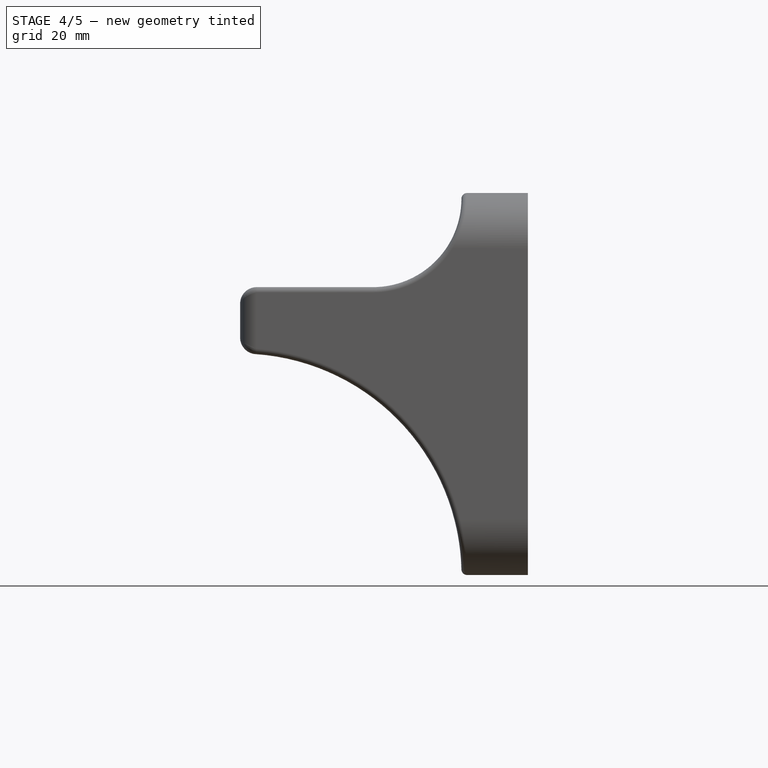
[diagram: stage 4 of 5 — front view after this stage's code; geometry added in this stage tinted green]
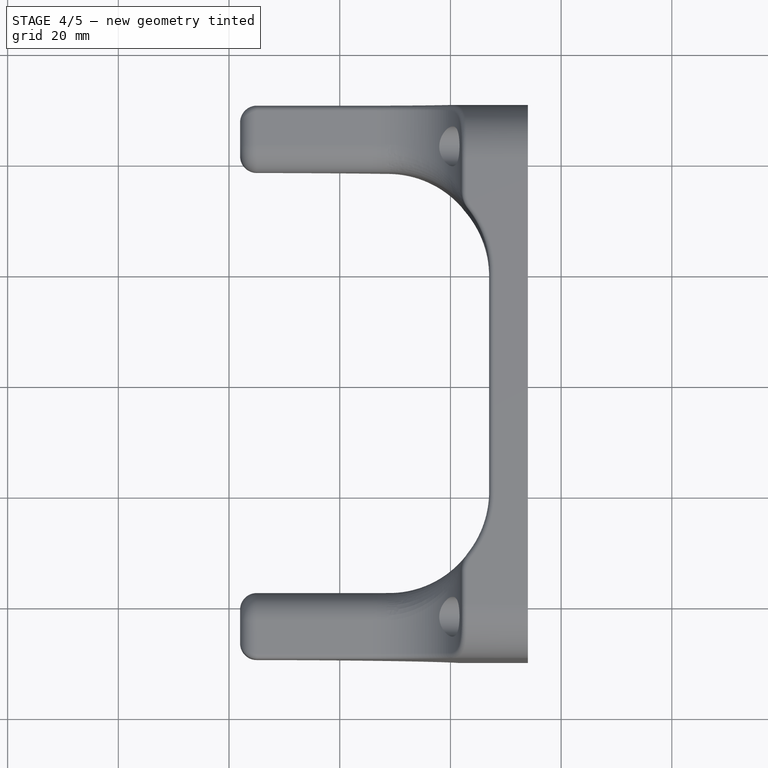
[diagram: stage 4 of 5 — top view after this stage's code; geometry added in this stage tinted green]
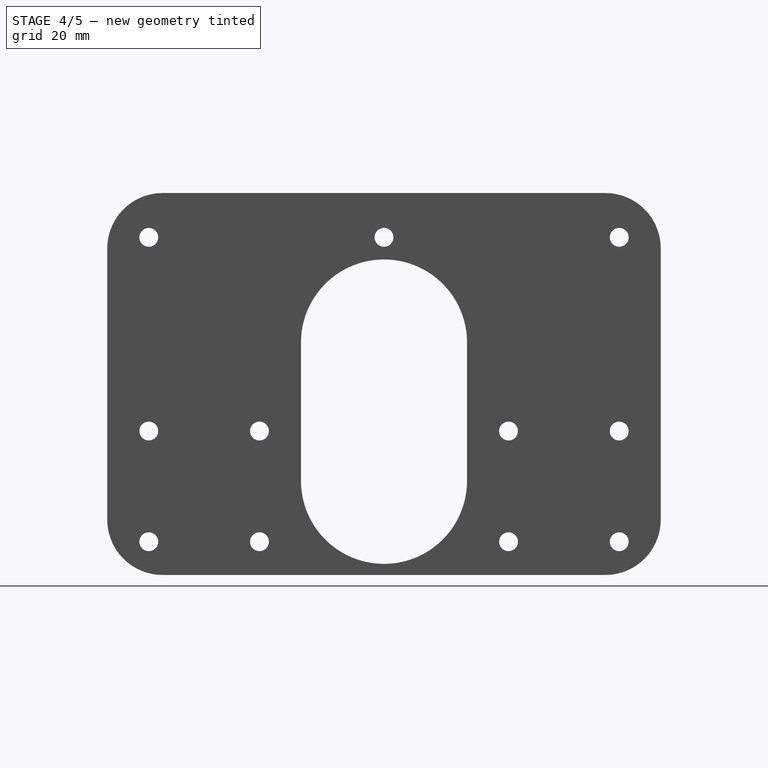
[diagram: stage 4 of 5 — right view after this stage's code; geometry added in this stage tinted green]
FEATURE [PartDesign::Chamfer] Chamfer
  Base = -> Fillet011 [Edge163]
  Placement = pos=(-86,0,0) rot=(0.57735,-0.57735,-0.57735;2.0944rad)
  Size = 1.7
FEATURE [PartDesign::Chamfer] Chamfer001
  Base = -> Chamfer [Edge98]
  Placement = pos=(-86,0,0) rot=(0.57735,-0.57735,-0.57735;2.0944rad)
  Size = 1.7
FEATURE [PartDesign::Chamfer] Chamfer002
  Base = -> Chamfer001 [Edge120]
  Placement = pos=(-86,0,0) rot=(0.57735,-0.57735,-0.57735;2.0944rad)
  Size = 1.7
FEATURE [PartDesign::Chamfer] Chamfer003
  Base = -> Chamfer002 [Edge110]
  Placement = pos=(-86,0,0) rot=(0.57735,-0.57735,-0.57735;2.0944rad)
  Size = 1.7
FEATURE [PartDesign::Chamfer] Chamfer004
  Base = -> Chamfer003 [Edge109]
  Placement = pos=(-86,0,0) rot=(0.57735,-0.57735,-0.57735;2.0944rad)
  Size = 1.7
FEATURE [PartDesign::Chamfer] Chamfer005
  Base = -> Chamfer004 [Edge133]
  Placement = pos=(-86,0,0) rot=(0.57735,-0.57735,-0.57735;2.0944rad)
  Size = 1.7
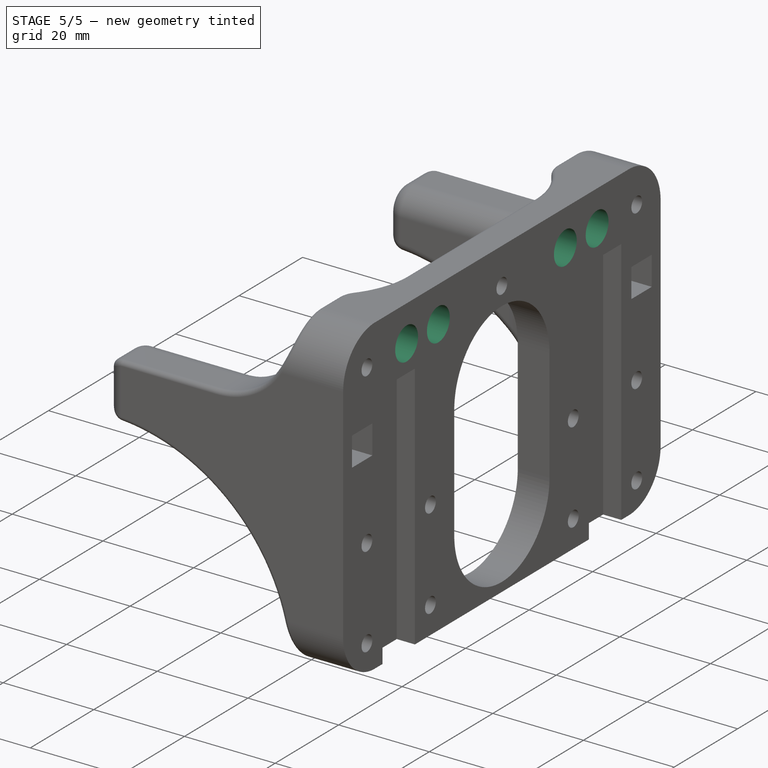
[diagram: stage 5 of 5 — iso view after this stage's code; geometry added in this stage tinted green]
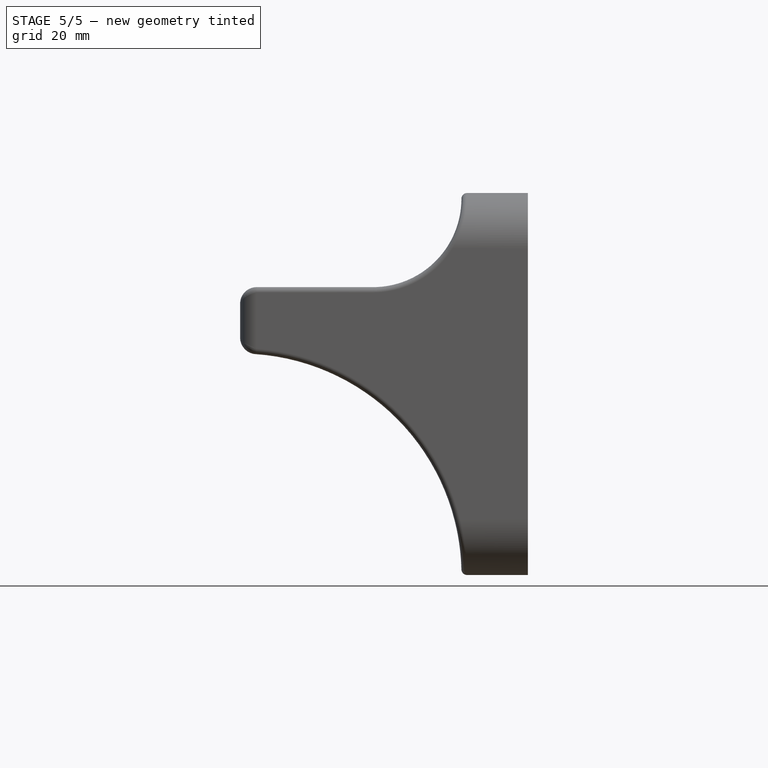
[diagram: stage 5 of 5 — front view after this stage's code; geometry added in this stage tinted green]
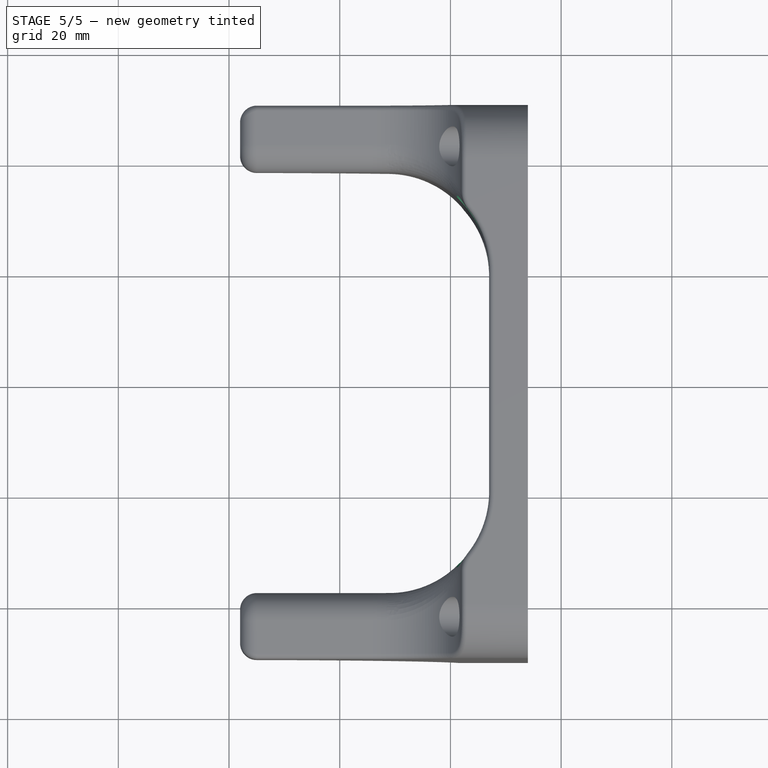
[diagram: stage 5 of 5 — top view after this stage's code; geometry added in this stage tinted green]
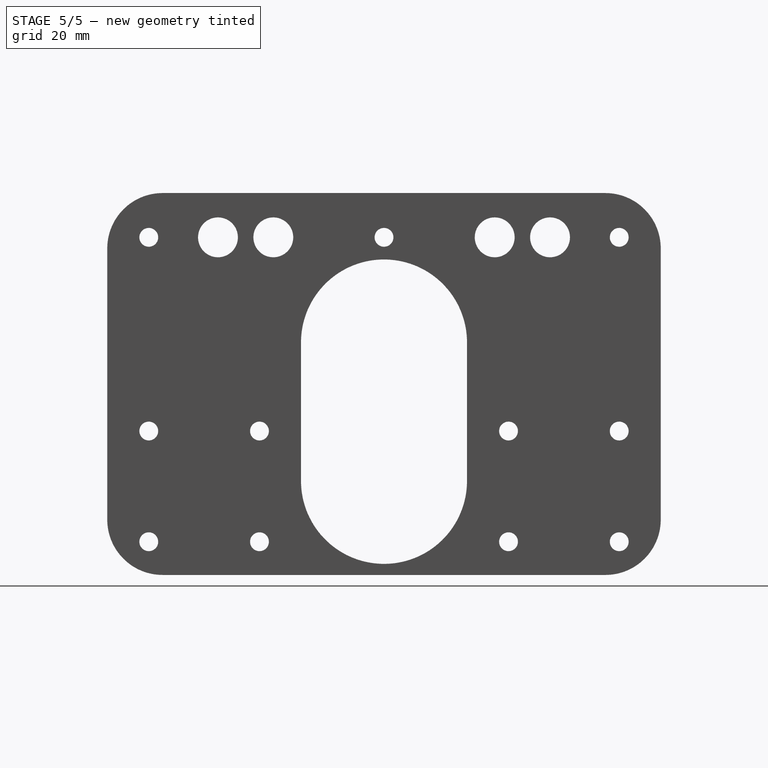
[diagram: stage 5 of 5 — right view after this stage's code; geometry added in this stage tinted green]
FEATURE [PartDesign::Chamfer] Chamfer006
  Base = -> Chamfer005 [Edge110]
  Placement = pos=(-86,0,0) rot=(0.57735,-0.57735,-0.57735;2.0944rad)
  Size = 1.7
FEATURE [PartDesign::Chamfer] Chamfer007
  Base = -> Chamfer006 [Edge115]
  Placement = pos=(-86,0,0) rot=(0.57735,-0.57735,-0.57735;2.0944rad)
  Size = 1.7
FEATURE [PartDesign::Chamfer] Chamfer008
  Base = -> Chamfer007 [Edge115]
  Placement = pos=(-86,0,0) rot=(0.57735,-0.57735,-0.57735;2.0944rad)
  Size = 1.7
FEATURE [PartDesign::Chamfer] Chamfer009
  Base = -> Chamfer008 [Edge104]
  Placement = pos=(-86,0,0) rot=(0.57735,-0.57735,-0.57735;2.0944rad)
  Size = 1.7
FEATURE [PartDesign::Chamfer] Chamfer010
  Base = -> Chamfer009 [Edge132]
  Placement = pos=(-86,0,0) rot=(0.57735,-0.57735,-0.57735;2.0944rad)
  Size = 1.7
FEATURE [Sketcher::SketchObject] Sketch018
  Placement = pos=(-86,0,0) rot=(-0.57735,0.57735,-0.57735;2.0944rad)
  Support = -> Chamfer010 [Face3]
  sketch-geometry (9):
    g0: LineSegment [constr] StartX=-50 StartY=0 StartZ=0 EndX=50 EndY=0 EndZ=0
    g1: LineSegment [constr] StartX=50 StartY=0 StartZ=0 EndX=50 EndY=-29 EndZ=0
    g2: LineSegment [constr] StartX=50 StartY=-29 StartZ=0 EndX=-50 EndY=-29 EndZ=0
    g3: LineSegment [constr] StartX=-50 StartY=-29 StartZ=0 EndX=-50 EndY=0 EndZ=0
    g4: LineSegment [constr] StartX=-30 StartY=-21 StartZ=0 EndX=30 EndY=-21 EndZ=0
    g5: Circle CenterX=-30 CenterY=-21 CenterZ=0 NormalX=0 NormalY=0 NormalZ=1 Radius=3.6
    g6: Circle CenterX=-20 CenterY=-21 CenterZ=0 NormalX=0 NormalY=0 NormalZ=1 Radius=3.6
    g7: Circle CenterX=20 CenterY=-21 CenterZ=0 NormalX=0 NormalY=0 NormalZ=1 Radius=3.6
    g8: Circle CenterX=30 CenterY=-21 CenterZ=0 NormalX=0 NormalY=0 NormalZ=1 Radius=3.6
  constraints (25):
    c: Coincident(g0,g1)
    c: Coincident(g1,g2)
    c: Coincident(g2,g3)
    c: Coincident(g3,g0)
    c: Horizontal(g0)
    c: Horizontal(g2)
    c: Vertical(g1)
    c: Vertical(g3)
    c: PointOnObject(g0,g-1)
    c: Symmetric(g0,g0,g-1)
    c: DistanceX(g2,g2) = 100
    c: DistanceY(g1,g1) = 29
    c: DistanceY(g1,g4) = 8
    c: DistanceX(g4,g4) = 60
    c: Symmetric(g4,g4,g-2)
    c: Coincident(g5,g4)
    c: PointOnObject(g6,g4)
    c: PointOnObject(g7,g4)
    c: Coincident(g8,g4)
    c: Symmetric(g7,g6,g-2)
    c: DistanceX(g6,g7) = 40
    c: Radius(g5) = 3.6
    c: Equal(g5,g6)
    c: Equal(g5,g7)
    c: Equal(g5,g8)
FEATURE [PartDesign::Pocket] Pocket006  label="Final"
  Length = 5
  Placement = pos=(-86,0,0) rot=(0.57735,-0.57735,-0.57735;2.0944rad)
  Sketch = -> Sketch018
  Type = 1
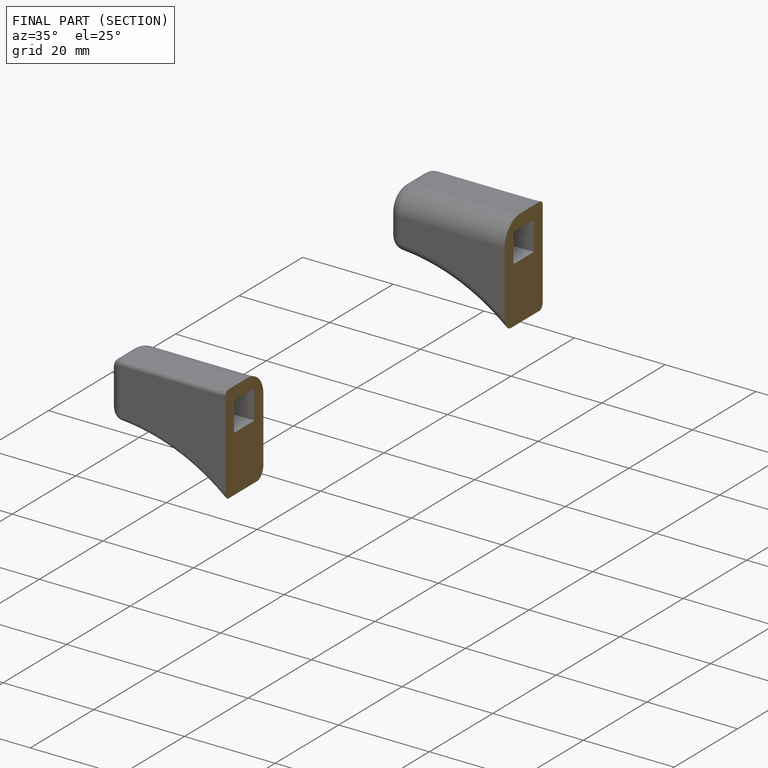
[diagram: finished part — half-section view (interior)]
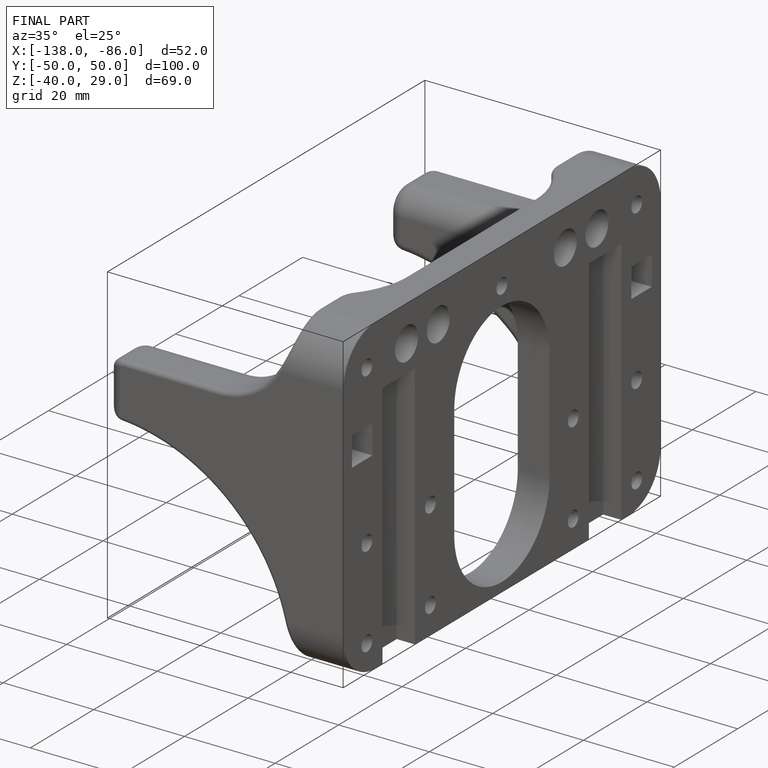
[diagram: finished part — iso view with bounding-box wireframe]
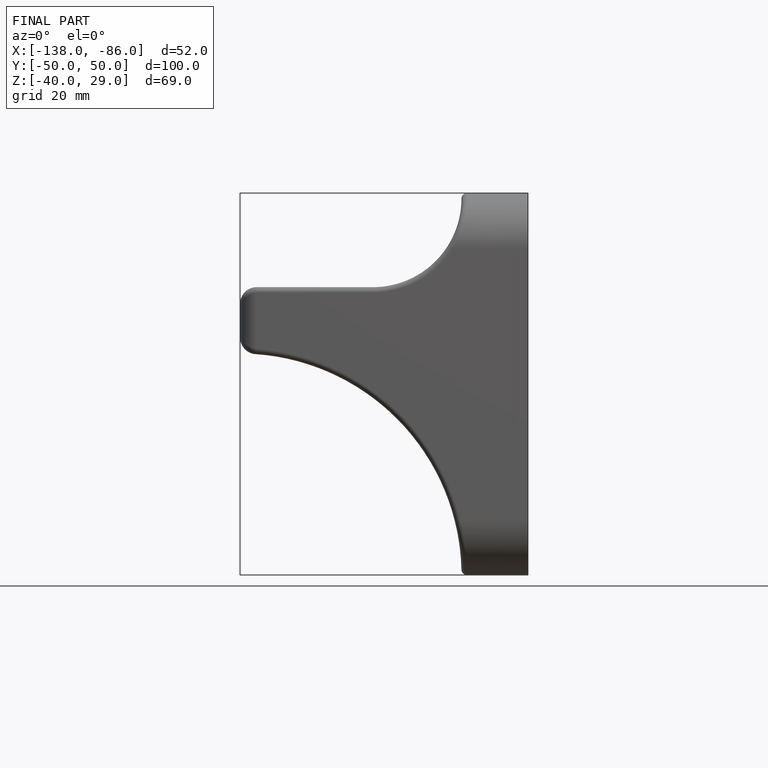
[diagram: finished part — front view with bounding-box wireframe]
